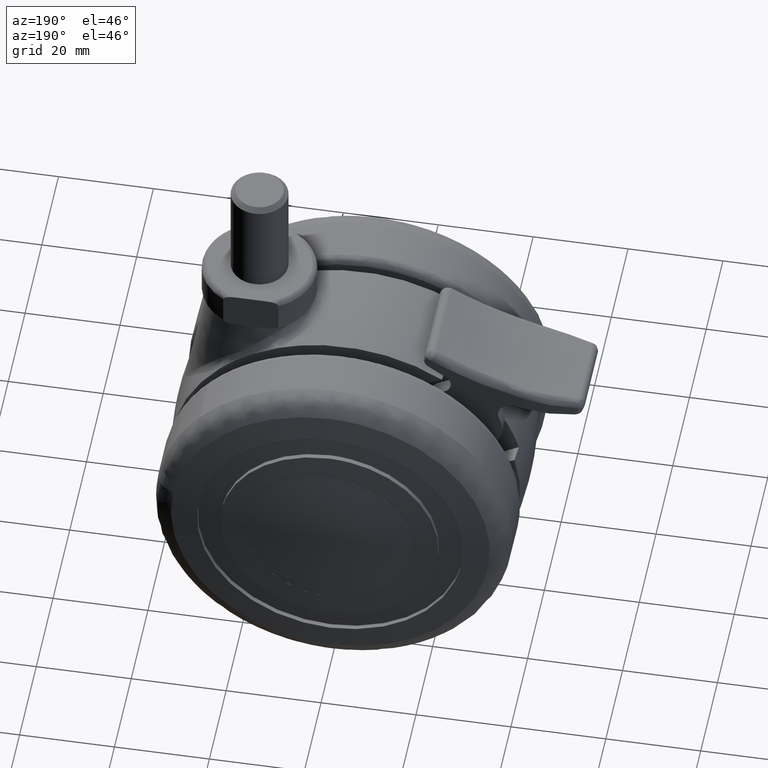
[diagram: clean part render]
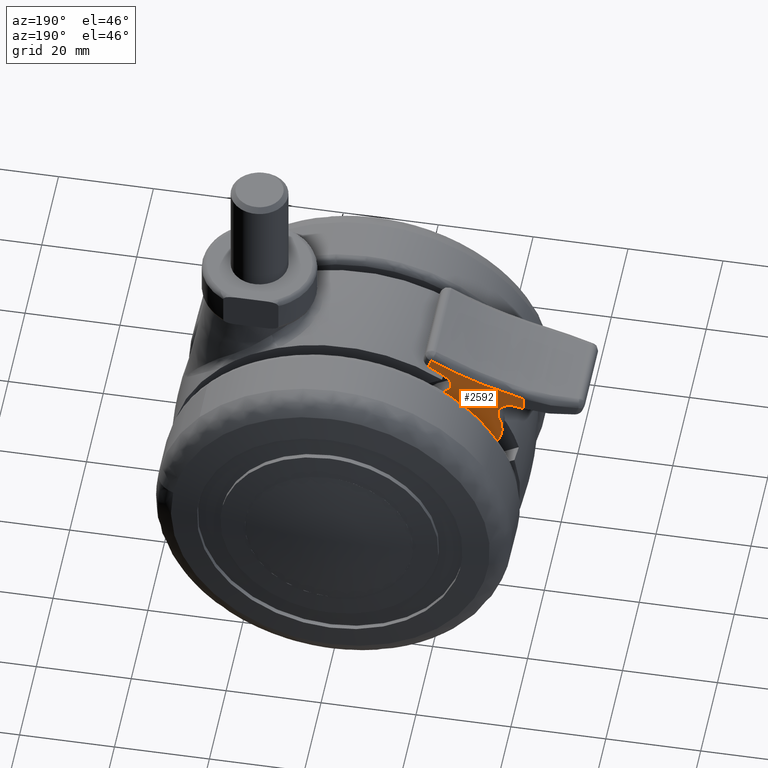
[diagram: same view with one face highlighted and labeled with its STEP entity id]
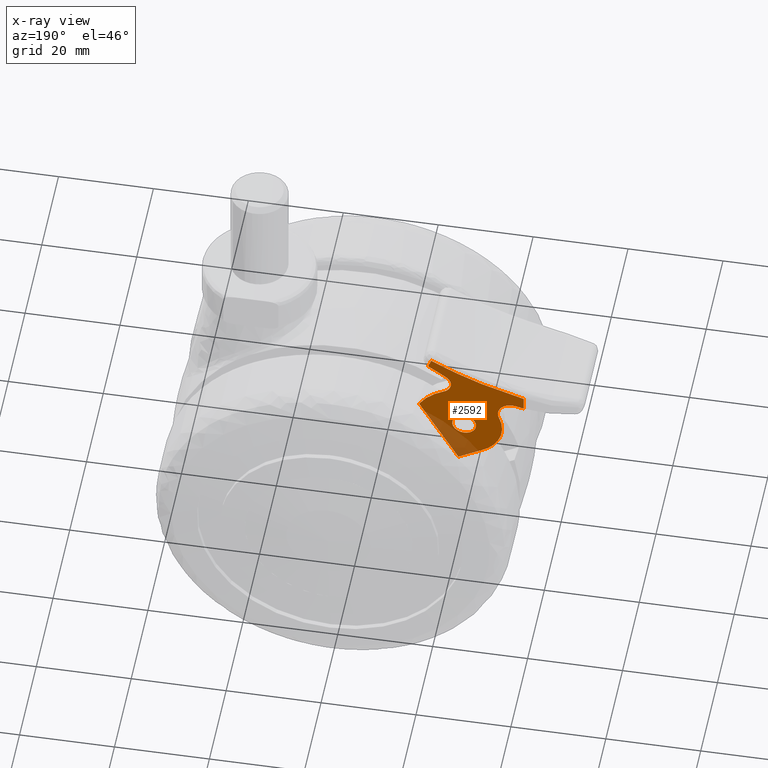
[diagram: x-ray of the same camera — body ghosted, the highlighted face saturated]
A machine part, auxiliary view. The second image highlights one B-rep face of the part: STEP entity #2592.
The next image is the same camera in x-ray: the body ghosted, the highlighted face saturated — about 15% of this face is hidden behind the body in this view.
In plain terms, the highlighted face is a freeform B-spline surface patch.
Its self-contained STEP definition (entity closure, byte-faithful):
#100=CARTESIAN_POINT('',(-22.459365003983120,10.499999999999501,17.666456650544909));
#101=VERTEX_POINT('',#100);
#107=CARTESIAN_POINT('',(-24.954702000000001,10.499999999999501,15.319077999999999));
#108=VERTEX_POINT('',#107);
#109=CARTESIAN_POINT('',(-24.954702000000001,10.499999999999501,15.319077999999999));
#110=CARTESIAN_POINT('',(-22.602936833902731,10.499999999999499,15.319078000000001));
#111=CARTESIAN_POINT('',(-22.459365003983127,10.499999999999497,17.666456650544912));
#119=(BOUNDED_CURVE()B_SPLINE_CURVE(2,(#109,#110,#111),.UNSPECIFIED.,.F.,.U.)B_SPLINE_CURVE_WITH_KNOTS((3,3),(0.500000000000000,0.739332962156509),.UNSPECIFIED.)CURVE()GEOMETRIC_REPRESENTATION_ITEM()RATIONAL_B_SPLINE_CURVE((1.0,0.719603993383288,0.976072041490046))REPRESENTATION_ITEM(''));
#120=EDGE_CURVE('',#108,#101,#119,.T.);
#122=CARTESIAN_POINT('',(-27.437225815872409,10.499999999999501,18.114163586951101));
#123=VERTEX_POINT('',#122);
#124=CARTESIAN_POINT('',(-27.437225815872413,10.499999999999504,18.114163586951097));
#125=CARTESIAN_POINT('',(-27.454702000000001,10.499999999999503,17.967138299442247));
#126=CARTESIAN_POINT('',(-27.454702000000001,10.499999999999501,17.819078000000001));
#127=CARTESIAN_POINT('',(-27.454701999999997,10.499999999999499,15.319077999999994));
#128=CARTESIAN_POINT('',(-24.954702000000001,10.499999999999501,15.319077999999999));
#136=(BOUNDED_CURVE()B_SPLINE_CURVE(2,(#124,#125,#126,#127,#128),.UNSPECIFIED.,.F.,.U.)B_SPLINE_CURVE_WITH_KNOTS((3,2,3),(0.229562473473545,0.250000000000000,0.500000000000000),.UNSPECIFIED.)CURVE()GEOMETRIC_REPRESENTATION_ITEM()RATIONAL_B_SPLINE_CURVE((0.956026754105370,0.976055948284325,1.0,0.707106781186548,1.0))REPRESENTATION_ITEM(''));
#137=EDGE_CURVE('',#123,#108,#136,.T.);
#181=CARTESIAN_POINT('',(-24.954702000000001,10.499999999999501,20.319078000000001));
#182=VERTEX_POINT('',#181);
#183=CARTESIAN_POINT('',(-24.954702000000001,10.499999999999501,20.319078000000001));
#184=CARTESIAN_POINT('',(-27.175138314321394,10.499999999999499,20.319077999999998));
#185=CARTESIAN_POINT('',(-27.437225815872413,10.499999999999504,18.114163586951097));
#193=(BOUNDED_CURVE()B_SPLINE_CURVE(2,(#183,#184,#185),.UNSPECIFIED.,.F.,.U.)B_SPLINE_CURVE_WITH_KNOTS((3,3),(0.0,0.229562473473545),.UNSPECIFIED.)CURVE()GEOMETRIC_REPRESENTATION_ITEM()RATIONAL_B_SPLINE_CURVE((1.0,0.731050832902222,0.956026754105370))REPRESENTATION_ITEM(''));
#194=EDGE_CURVE('',#182,#123,#193,.T.);
#196=CARTESIAN_POINT('',(-22.459365003983123,10.499999999999503,17.666456650544909));
#197=CARTESIAN_POINT('',(-22.454702000000001,10.499999999999497,17.742696091133848));
#198=CARTESIAN_POINT('',(-22.454702000000001,10.499999999999501,17.819078000000001));
#199=CARTESIAN_POINT('',(-22.454701999999997,10.499999999999499,20.319077999999998));
#200=CARTESIAN_POINT('',(-24.954702000000001,10.499999999999501,20.319078000000001));
#208=(BOUNDED_CURVE()B_SPLINE_CURVE(2,(#196,#197,#198,#199,#200),.UNSPECIFIED.,.F.,.U.)B_SPLINE_CURVE_WITH_KNOTS((3,2,3),(0.739332962156509,0.750000000000000,1.0),.UNSPECIFIED.)CURVE()GEOMETRIC_REPRESENTATION_ITEM()RATIONAL_B_SPLINE_CURVE((0.976072041490047,0.987502787803261,1.0,0.707106781186548,1.0))REPRESENTATION_ITEM(''));
#209=EDGE_CURVE('',#101,#182,#208,.T.);
#766=CARTESIAN_POINT('',(-17.365358424947651,10.499999999999501,33.724537288746063));
#767=VERTEX_POINT('',#766);
#785=CARTESIAN_POINT('',(-18.004880978076951,10.499999999999501,35.481610913863207));
#786=VERTEX_POINT('',#785);
#787=CARTESIAN_POINT('',(-18.004880978076951,10.499999999999501,35.481610913863207));
#788=CARTESIAN_POINT('',(-17.365358424947651,10.499999999999501,33.724537288746063));
#789=QUASI_UNIFORM_CURVE('',1,(#787,#788),.UNSPECIFIED.,.F.,.U.);
#790=EDGE_CURVE('',#786,#767,#789,.T.);
#885=CARTESIAN_POINT('',(-37.517434999998997,10.499999999999501,27.603692331098301));
#886=VERTEX_POINT('',#885);
#918=CARTESIAN_POINT('',(-37.517434999998997,10.499999999999501,27.603692331098301));
#919=CARTESIAN_POINT('',(-27.248358178489841,10.499999999999496,30.272514859752171));
#920=CARTESIAN_POINT('',(-18.004880978076990,10.499999999999501,35.481610913863243));
#928=(BOUNDED_CURVE()B_SPLINE_CURVE(2,(#918,#919,#920),.UNSPECIFIED.,.F.,.U.)CURVE()GEOMETRIC_REPRESENTATION_ITEM()QUASI_UNIFORM_CURVE()RATIONAL_B_SPLINE_CURVE((1.0,0.991631942421427,1.0))REPRESENTATION_ITEM(''));
#929=EDGE_CURVE('',#886,#786,#928,.T.);
#1660=CARTESIAN_POINT('',(-35.763425167482801,10.499999999999501,25.093472712274551));
#1661=VERTEX_POINT('',#1660);
#1667=CARTESIAN_POINT('',(-32.800199407951297,10.500000000000000,24.139398912497199));
#1668=VERTEX_POINT('',#1667);
#1669=CARTESIAN_POINT('',(-32.800199407951297,10.500000000000000,24.139398912497199));
#1670=CARTESIAN_POINT('',(-33.992289342628169,10.499999999999499,25.515655400077105));
#1671=CARTESIAN_POINT('',(-35.763425167482801,10.499999999999501,25.093472712274540));
#1679=(BOUNDED_CURVE()B_SPLINE_CURVE(2,(#1669,#1670,#1671),.UNSPECIFIED.,.F.,.U.)CURVE()GEOMETRIC_REPRESENTATION_ITEM()QUASI_UNIFORM_CURVE()RATIONAL_B_SPLINE_CURVE((1.0,0.854872249757999,1.0))REPRESENTATION_ITEM(''));
#1680=EDGE_CURVE('',#1668,#1661,#1679,.T.);
#1721=CARTESIAN_POINT('',(-32.791904902165612,10.500000000000000,24.129822984484750));
#1722=VERTEX_POINT('',#1721);
#1728=CARTESIAN_POINT('',(-32.303656844906349,10.500000000000000,20.980226950544299));
#1729=VERTEX_POINT('',#1728);
#1730=CARTESIAN_POINT('',(-32.303656844906349,10.500000000000000,20.980226950544299));
#1731=CARTESIAN_POINT('',(-31.560419649566420,10.499999999999499,22.708084977186033));
#1732=CARTESIAN_POINT('',(-32.791904902165612,10.500000000000000,24.129822984484750));
#1740=(BOUNDED_CURVE()B_SPLINE_CURVE(2,(#1730,#1731,#1732),.UNSPECIFIED.,.F.,.U.)CURVE()GEOMETRIC_REPRESENTATION_ITEM()QUASI_UNIFORM_CURVE()RATIONAL_B_SPLINE_CURVE((1.0,0.847244859293432,1.0))REPRESENTATION_ITEM(''));
#1741=EDGE_CURVE('',#1729,#1722,#1740,.T.);
#1784=CARTESIAN_POINT('',(-20.700146136198200,10.500000000000000,26.848209509968051));
#1785=VERTEX_POINT('',#1784);
#1791=CARTESIAN_POINT('',(-20.987426313139199,10.499999999999501,31.249681716282851));
#1792=VERTEX_POINT('',#1791);
#1793=CARTESIAN_POINT('',(-20.987426313139199,10.499999999999501,31.249681716282851));
#1794=CARTESIAN_POINT('',(-22.261290643984374,10.499999999999499,30.458947005295244));
#1795=CARTESIAN_POINT('',(-22.163638461425279,10.499999999999501,28.962800031297800));
#1796=CARTESIAN_POINT('',(-22.065986278866195,10.499999999999499,27.466653057300341));
#1797=CARTESIAN_POINT('',(-20.700146136198200,10.500000000000000,26.848209509968051));
#1805=(BOUNDED_CURVE()B_SPLINE_CURVE(2,(#1793,#1794,#1795,#1796,#1797),.UNSPECIFIED.,.F.,.U.)B_SPLINE_CURVE_WITH_KNOTS((3,2,3),(0.0,0.500000000000000,1.0),.UNSPECIFIED.)CURVE()GEOMETRIC_REPRESENTATION_ITEM()RATIONAL_B_SPLINE_CURVE((1.0,0.857594243010143,1.0,0.857594243010143,1.0))REPRESENTATION_ITEM(''));
#1806=EDGE_CURVE('',#1792,#1785,#1805,.T.);
#1898=CARTESIAN_POINT('',(-23.738051422649050,10.500000000000000,7.879040154622690));
#1899=VERTEX_POINT('',#1898);
#1900=CARTESIAN_POINT('',(-15.448867419775500,10.500000000000000,22.236328000886850));
#1901=VERTEX_POINT('',#1900);
#1902=CARTESIAN_POINT('',(-23.738051422649050,10.500000000000000,7.879040154622690));
#1903=CARTESIAN_POINT('',(-15.448867419775500,10.500000000000000,22.236328000886850));
#1904=QUASI_UNIFORM_CURVE('',1,(#1902,#1903),.UNSPECIFIED.,.F.,.U.);
#1905=EDGE_CURVE('',#1899,#1901,#1904,.T.);
#1926=CARTESIAN_POINT('',(-28.954702000000001,10.500000000000000,10.890874769724480));
#1927=VERTEX_POINT('',#1926);
#1928=CARTESIAN_POINT('',(-28.954702000000001,10.500000000000000,10.890874769724480));
#1929=CARTESIAN_POINT('',(-23.738051422649050,10.500000000000000,7.879040154622690));
#1930=QUASI_UNIFORM_CURVE('',1,(#1928,#1929),.UNSPECIFIED.,.F.,.U.);
#1931=EDGE_CURVE('',#1927,#1899,#1930,.T.);
#1959=CARTESIAN_POINT('',(-32.303656844906357,10.500000000000000,20.980226950544310));
#1960=CARTESIAN_POINT('',(-35.113954840971175,10.499999999999998,14.446921055466161));
#1961=CARTESIAN_POINT('',(-28.954701999999990,10.500000000000000,10.890874769724491));
#1969=(BOUNDED_CURVE()B_SPLINE_CURVE(2,(#1959,#1960,#1961),.UNSPECIFIED.,.F.,.U.)CURVE()GEOMETRIC_REPRESENTATION_ITEM()QUASI_UNIFORM_CURVE()RATIONAL_B_SPLINE_CURVE((1.0,0.747363788849484,1.0))REPRESENTATION_ITEM(''));
#1970=EDGE_CURVE('',#1729,#1927,#1969,.T.);
#1981=CARTESIAN_POINT('',(-32.800199407951297,10.500000000000000,24.139398912497199));
#1982=CARTESIAN_POINT('',(-32.791904902165612,10.500000000000000,24.129822984484750));
#1983=QUASI_UNIFORM_CURVE('',1,(#1981,#1982),.UNSPECIFIED.,.F.,.U.);
#1984=EDGE_CURVE('',#1668,#1722,#1983,.T.);
#2006=CARTESIAN_POINT('',(-15.448867419775491,10.500000000000000,22.236328000886850));
#2007=CARTESIAN_POINT('',(-17.372581506033089,10.499999999999998,25.341509853420085));
#2008=CARTESIAN_POINT('',(-20.700146136198200,10.500000000000000,26.848209509968040));
#2016=(BOUNDED_CURVE()B_SPLINE_CURVE(2,(#2006,#2007,#2008),.UNSPECIFIED.,.F.,.U.)CURVE()GEOMETRIC_REPRESENTATION_ITEM()QUASI_UNIFORM_CURVE()RATIONAL_B_SPLINE_CURVE((1.0,0.956660333882786,1.0))REPRESENTATION_ITEM(''));
#2017=EDGE_CURVE('',#1901,#1785,#2016,.T.);
#2472=CARTESIAN_POINT('',(-37.517434999998997,10.499999999999501,24.708523167532800));
#2473=VERTEX_POINT('',#2472);
#2474=CARTESIAN_POINT('',(-37.517434999998997,10.499999999999501,27.603692331098301));
#2475=CARTESIAN_POINT('',(-37.517434999998997,10.499999999999501,24.708523167532800));
#2476=QUASI_UNIFORM_CURVE('',1,(#2474,#2475),.UNSPECIFIED.,.F.,.U.);
#2477=EDGE_CURVE('',#886,#2473,#2476,.T.);
#2542=CARTESIAN_POINT('',(-38.619757964538280,10.499999999999501,36.860357715109018));
#2543=CARTESIAN_POINT('',(-14.346543666002759,10.499999999999501,36.860357715109018));
#2544=CARTESIAN_POINT('',(-38.619757964538280,10.499999999999501,6.500291132300951));
#2545=CARTESIAN_POINT('',(-14.346543666002759,10.499999999999501,6.500291132300951));
#2546=B_SPLINE_SURFACE_WITH_KNOTS('',1,1,((#2542,#2544),(#2543,#2545)),.UNSPECIFIED.,.F.,.F.,.U.,(2,2),(2,2),(0.0,24.273214298535521),(0.0,30.360066582808070),.UNSPECIFIED.);
#2547=ORIENTED_EDGE('',*,*,#929,.T.);
#2548=ORIENTED_EDGE('',*,*,#790,.T.);
#2549=CARTESIAN_POINT('',(-20.987426313139199,10.499999999999501,31.249681716282829));
#2550=CARTESIAN_POINT('',(-19.122056195560962,10.499999999999503,32.407585949169281));
#2551=CARTESIAN_POINT('',(-17.365358424947669,10.499999999999501,33.724537288746042));
#2559=(BOUNDED_CURVE()B_SPLINE_CURVE(2,(#2549,#2550,#2551),.UNSPECIFIED.,.F.,.U.)CURVE()GEOMETRIC_REPRESENTATION_ITEM()QUASI_UNIFORM_CURVE()RATIONAL_B_SPLINE_CURVE((1.0,0.999037322331292,1.0))REPRESENTATION_ITEM(''));
#2560=EDGE_CURVE('',#1792,#767,#2559,.T.);
#2561=ORIENTED_EDGE('',*,*,#2560,.F.);
#2562=ORIENTED_EDGE('',*,*,#1806,.T.);
#2563=ORIENTED_EDGE('',*,*,#2017,.F.);
#2564=ORIENTED_EDGE('',*,*,#1905,.F.);
#2565=ORIENTED_EDGE('',*,*,#1931,.F.);
#2566=ORIENTED_EDGE('',*,*,#1970,.F.);
#2567=ORIENTED_EDGE('',*,*,#1741,.T.);
#2568=ORIENTED_EDGE('',*,*,#1984,.F.);
#2569=ORIENTED_EDGE('',*,*,#1680,.T.);
#2570=CARTESIAN_POINT('',(-37.517434999998997,10.499999999999501,24.708523167532800));
#2571=CARTESIAN_POINT('',(-36.636973150628386,10.499999999999504,24.885246538836292));
#2572=CARTESIAN_POINT('',(-35.763425167482808,10.499999999999501,25.093472712274568));
#2580=(BOUNDED_CURVE()B_SPLINE_CURVE(2,(#2570,#2571,#2572),.UNSPECIFIED.,.F.,.U.)CURVE()GEOMETRIC_REPRESENTATION_ITEM()QUASI_UNIFORM_CURVE()RATIONAL_B_SPLINE_CURVE((1.0,0.999838750167018,1.0))REPRESENTATION_ITEM(''));
#2581=EDGE_CURVE('',#2473,#1661,#2580,.T.);
#2582=ORIENTED_EDGE('',*,*,#2581,.F.);
#2583=ORIENTED_EDGE('',*,*,#2477,.F.);
#2584=EDGE_LOOP('',(#2547,#2548,#2561,#2562,#2563,#2564,#2565,#2566,#2567,#2568,#2569,#2582,#2583));
#2585=FACE_OUTER_BOUND('',#2584,.T.);
#2586=ORIENTED_EDGE('',*,*,#120,.T.);
#2587=ORIENTED_EDGE('',*,*,#209,.T.);
#2588=ORIENTED_EDGE('',*,*,#194,.T.);
#2589=ORIENTED_EDGE('',*,*,#137,.T.);
#2590=EDGE_LOOP('',(#2586,#2587,#2588,#2589));
#2591=FACE_BOUND('',#2590,.T.);
#2592=ADVANCED_FACE('',(#2585,#2591),#2546,.T.);